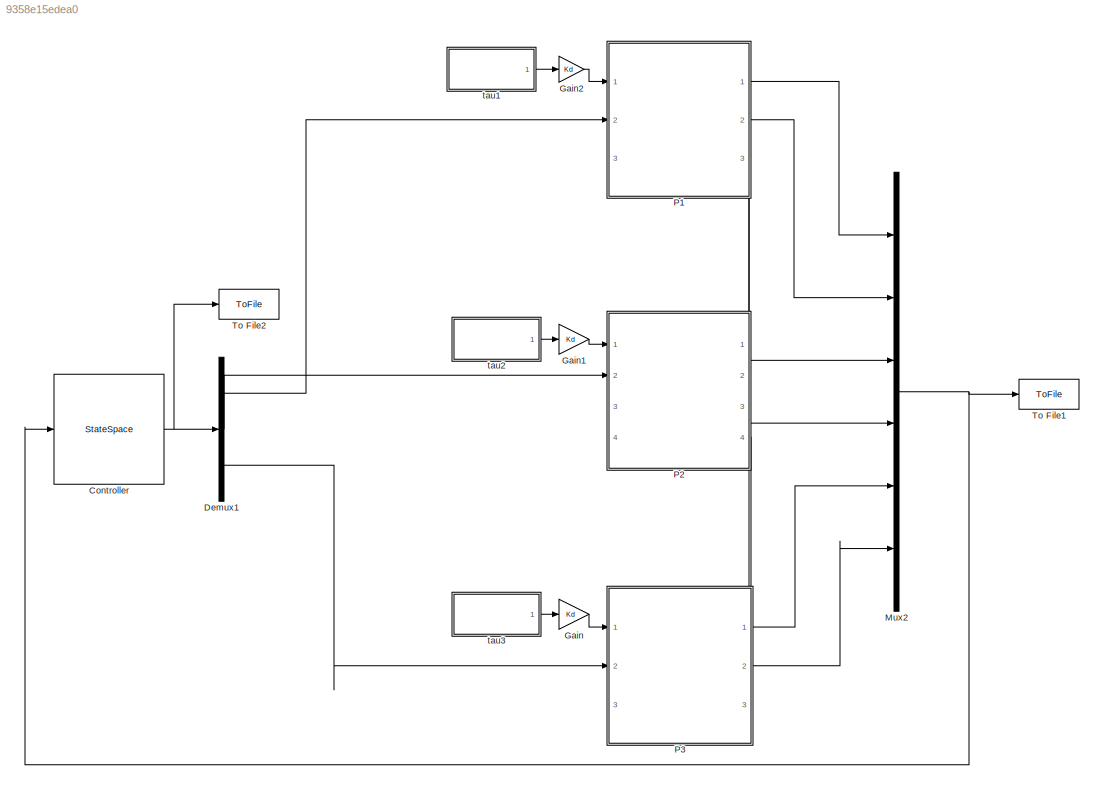
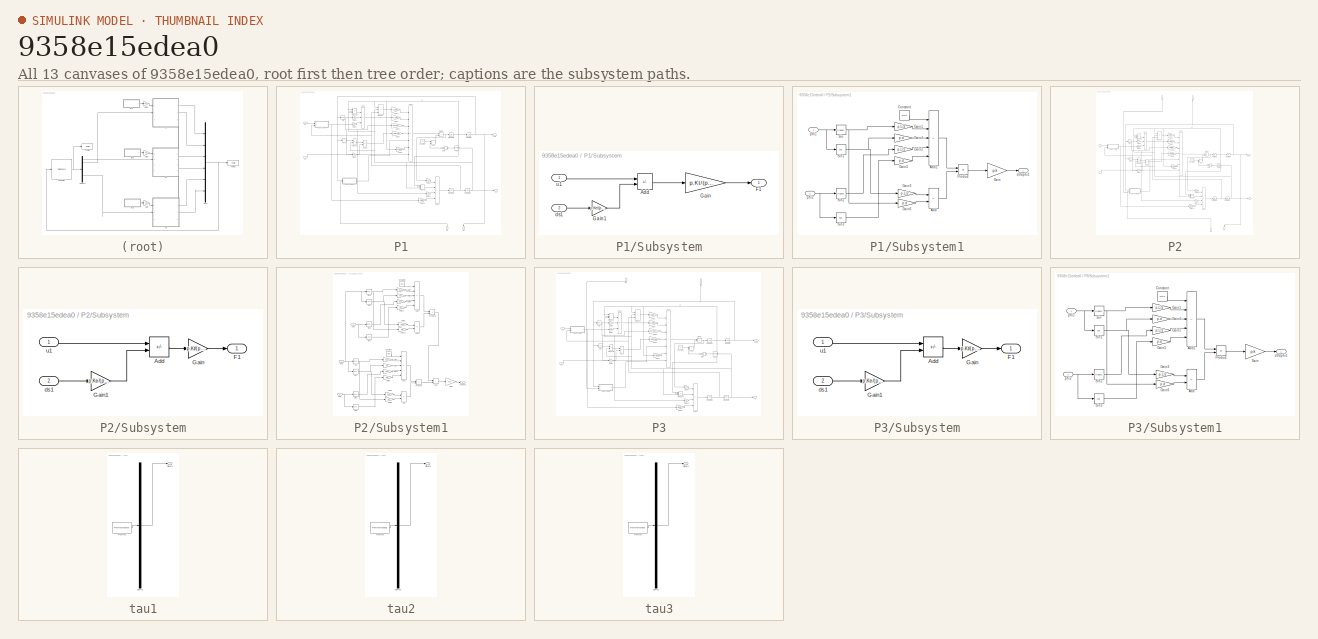
[diagram: thumbnail index - all 13 canvases of the model, root first then tree order]
MODEL slx_9358e15edea0
KIND model
CONFIG AbsTol = auto
CONFIG EnableMultiTasking = off
CONFIG FixedStep = auto
CONFIG MaxStep = auto
CONFIG MinStep = auto
CONFIG RelTol = 1e-3
CONFIG SampleTimeConstraint = Unconstrained
CONFIG Solver = ode45
CONFIG SolverName = ode45
CONFIG StartTime = 0.0
CONFIG StopTime = 10.0
BLOCK [StateSpace] Controller
  A = K.A
  B = K.B
  C = K.C
  D = K.D
  InitialCondition = 0
  Ports = [1, 1]
BLOCK [Demux] Demux1
  Outputs = 3
  Ports = [1, 3]
BLOCK [Gain] Gain
  Gain = Kd
BLOCK [Gain] Gain1
  Gain = Kd
BLOCK [Gain] Gain2
  Gain = Kd
BLOCK [Mux] Mux2
  DisplayOption = bar
  Inputs = 6
  Ports = [6, 1]
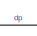
[diagram: P1 - part 1/3, top center region]
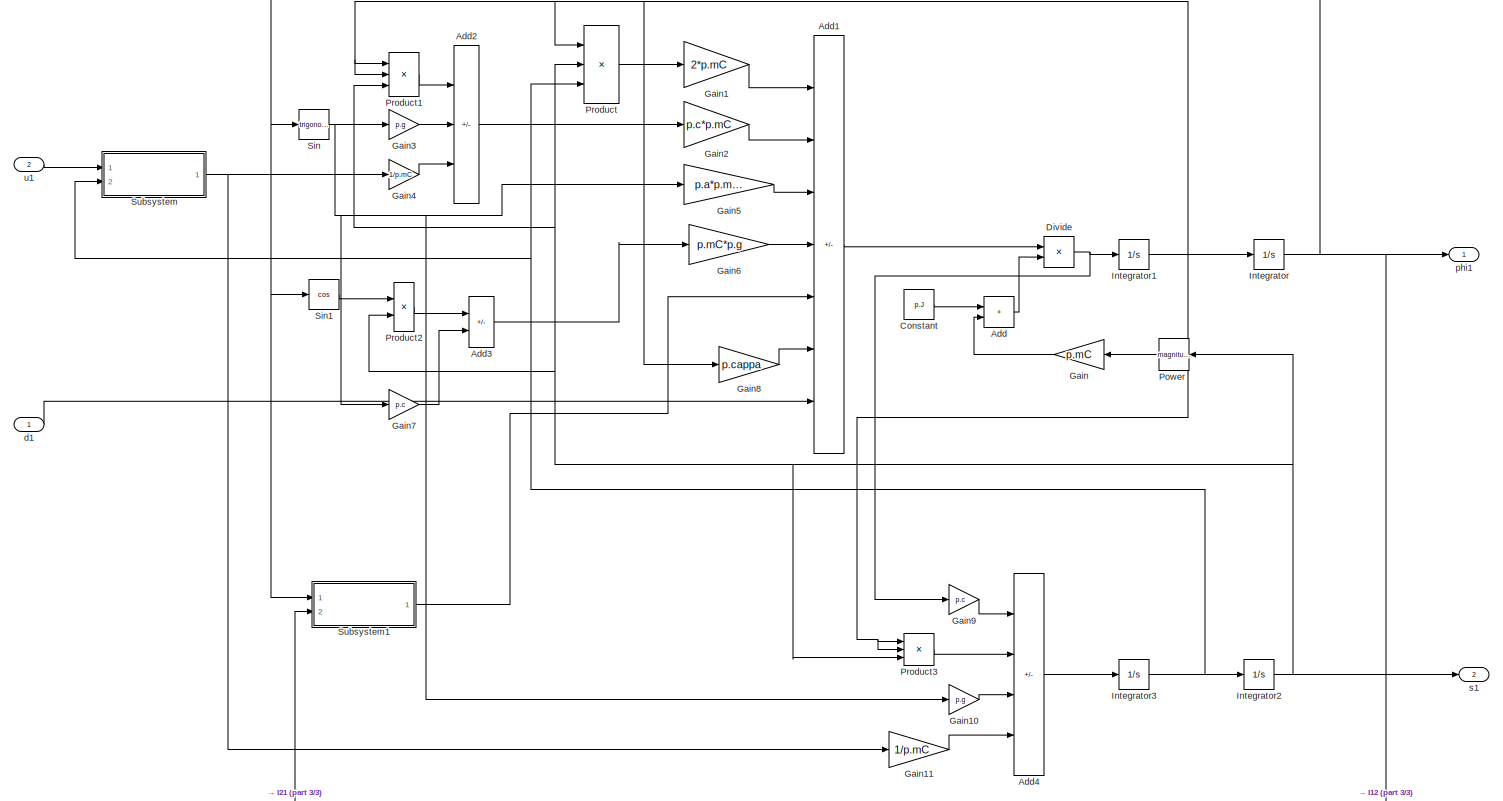
[diagram: P1 - part 2/3, most of the canvas]
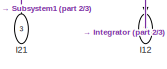
[diagram: P1 - part 3/3, bottom right region]
BLOCK [SubSystem] P1
  NameLocation = top
  PortSchema = {"entries":[{"content":{"sides":[{"content":{"connectorIds":["In1","In2"]},"type":"ConnectorPlacement.EquallySpacedRectSide","uuid":"8ecf2bd6-8dd7-4624-a6b6-31e540f77a47"},{"content":{"connectorIds":["Out1","Out2"],"side":"RIGHT"},"type":"ConnectorPlacement.EquallySpacedRectSide","uuid":"8430024e-b75d-4fb2-99a2-0065abf52074"},{"content":{"connectorIds":[],"side":"TOP"},"type":"ConnectorPlacement.E...<+411ch>
  Ports = [3, 3]
  RequestExecContextInheritance = off
BLOCK [Sum] P1/Add
  IconShape = rectangular
  Ports = [2, 1]
BLOCK [Sum] P1/Add1
  IconShape = rectangular
  Inputs = -++---+
  Ports = [7, 1]
BLOCK [Sum] P1/Add2
  IconShape = rectangular
  Inputs = +-+
  Ports = [3, 1]
BLOCK [Sum] P1/Add3
  IconShape = rectangular
  Inputs = +-
  Ports = [2, 1]
BLOCK [Sum] P1/Add4
  IconShape = rectangular
  Inputs = ++-+
  Ports = [4, 1]
BLOCK [Constant] P1/Constant
  Value = p.J
BLOCK [Product] P1/Divide
  Inputs = */
  Ports = [2, 1]
BLOCK [Gain] P1/Gain
  Gain = p.mC
BLOCK [Gain] P1/Gain1
  Gain = 2*p.mC
BLOCK [Gain] P1/Gain10
  Gain = p.g
BLOCK [Gain] P1/Gain11
  Gain = 1/p.mC
BLOCK [Gain] P1/Gain2
  Gain = p.c*p.mC
BLOCK [Gain] P1/Gain3
  Gain = p.g
BLOCK [Gain] P1/Gain4
  Gain = 1/p.mC
BLOCK [Gain] P1/Gain5
  Gain = p.a*p.mA*p.g
BLOCK [Gain] P1/Gain6
  Gain = p.mC*p.g
BLOCK [Gain] P1/Gain7
  Gain = p.c
BLOCK [Gain] P1/Gain8
  Gain = p.cappa
BLOCK [Gain] P1/Gain9
  Gain = p.c
BLOCK [Outport] P1/I12
  NameLocation = left
  Port = 3
BLOCK [Inport] P1/I21
  NameLocation = right
  Port = 3
BLOCK [Integrator] P1/Integrator
  Ports = [1, 1]
BLOCK [Integrator] P1/Integrator1
  Ports = [1, 1]
BLOCK [Integrator] P1/Integrator2
  Ports = [1, 1]
BLOCK [Integrator] P1/Integrator3
  Ports = [1, 1]
BLOCK [Math] P1/Power
  Operator = magnitude^2
  Ports = [1, 1]
BLOCK [Product] P1/Product
  Inputs = 3
  Ports = [3, 1]
BLOCK [Product] P1/Product1
  Inputs = 3
  Ports = [3, 1]
BLOCK [Product] P1/Product2
  Ports = [2, 1]
BLOCK [Product] P1/Product3
  Inputs = 3
  Ports = [3, 1]
BLOCK [Trigonometry] P1/Sin
  Ports = [1, 1]
BLOCK [Trigonometry] P1/Sin1
  Operator = cos
  Ports = [1, 1]
BLOCK [SubSystem] P1/Subsystem
  Ports = [2, 1]
  RequestExecContextInheritance = off
BLOCK [Sum] P1/Subsystem/Add
  IconShape = rectangular
  Inputs = +-
  Ports = [2, 1]
BLOCK [Outport] P1/Subsystem/F1
BLOCK [Gain] P1/Subsystem/Gain
  Gain = p.Kt/(p.Ra*p.p*p.r)
BLOCK [Gain] P1/Subsystem/Gain1
  Gain = p.Ke/(p.p*p.r)
BLOCK [Inport] P1/Subsystem/ds1
  Port = 2
BLOCK [Inport] P1/Subsystem/u1
BLOCK [SubSystem] P1/Subsystem1
  Ports = [2, 1]
  RequestExecContextInheritance = off
BLOCK [Sum] P1/Subsystem1/Add
  IconShape = rectangular
  Inputs = +-
  Ports = [2, 1]
BLOCK [Sum] P1/Subsystem1/Add1
  IconShape = rectangular
  Inputs = -++++
  Ports = [5, 1]
BLOCK [Constant] P1/Subsystem1/Constant
  Value = 2*p.d
BLOCK [Gain] P1/Subsystem1/Gain
  Gain = p.k
BLOCK [Gain] P1/Subsystem1/Gain1
  Gain = p.L/2
BLOCK [Gain] P1/Subsystem1/Gain2
  Gain = p.L/2
BLOCK [Gain] P1/Subsystem1/Gain3
  Gain = p.L/2
BLOCK [Gain] P1/Subsystem1/Gain4
  Gain = p.d
BLOCK [Gain] P1/Subsystem1/Gain5
  Gain = p.d
BLOCK [Gain] P1/Subsystem1/Gain6
  Gain = p.d
BLOCK [Product] P1/Subsystem1/Product
  Ports = [2, 1]
BLOCK [Trigonometry] P1/Subsystem1/Sin
  Ports = [1, 1]
BLOCK [Trigonometry] P1/Subsystem1/Sin1
  Operator = cos
  Ports = [1, 1]
BLOCK [Trigonometry] P1/Subsystem1/Sin2
  Ports = [1, 1]
BLOCK [Trigonometry] P1/Subsystem1/Sin3
  Operator = cos
  Ports = [1, 1]
BLOCK [Outport] P1/Subsystem1/dVdphi1
BLOCK [Inport] P1/Subsystem1/phi1
BLOCK [Inport] P1/Subsystem1/phi2
  Port = 2
BLOCK [Inport] P1/d1
BLOCK [Outport] P1/phi1
BLOCK [Outport] P1/s1
  Port = 2
BLOCK [Inport] P1/u1
  Port = 2
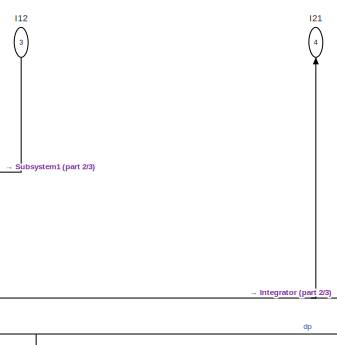
[diagram: P2 - part 1/3, top center region]
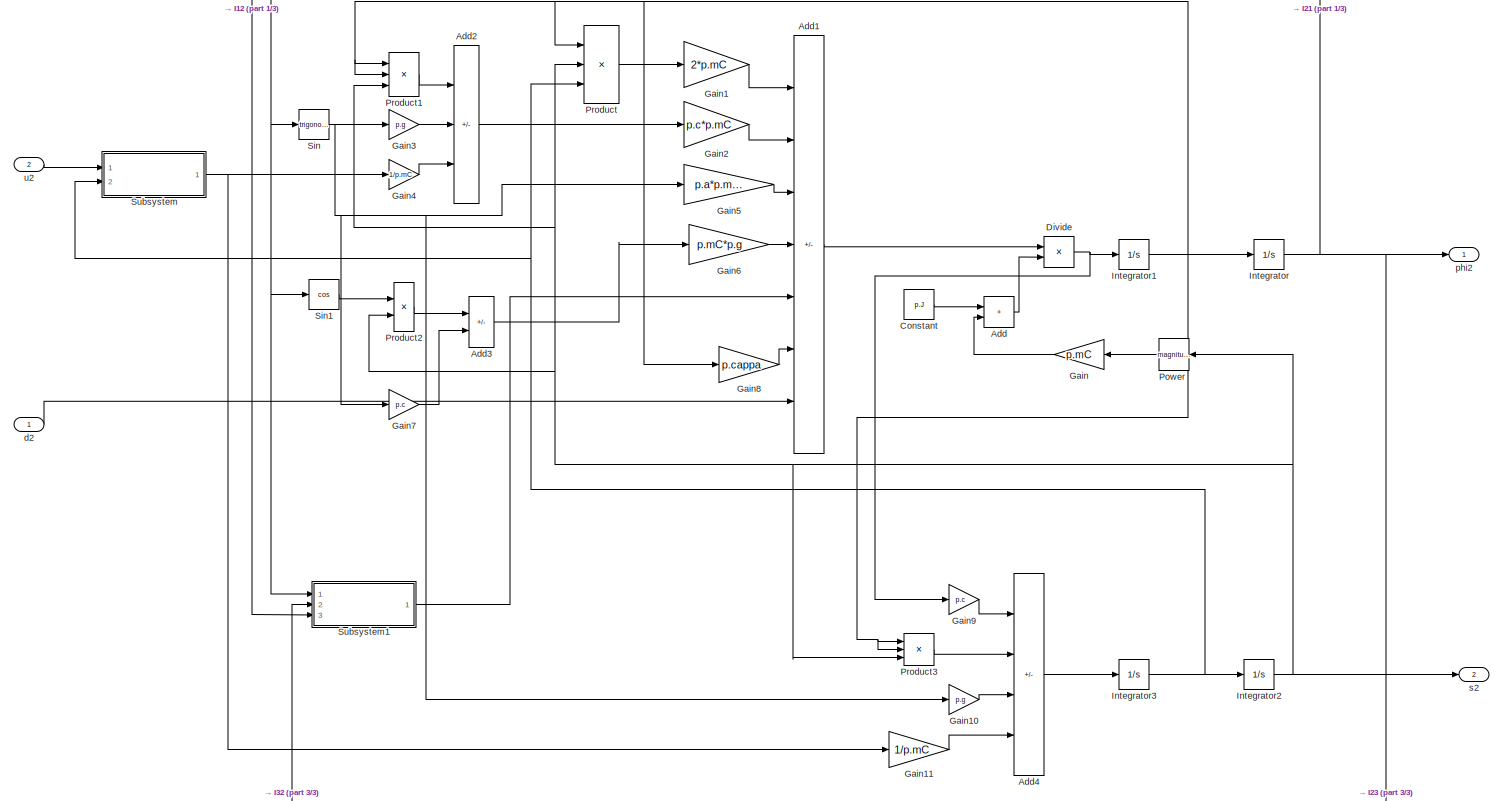
[diagram: P2 - part 2/3, full width, middle band]
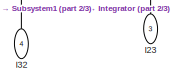
[diagram: P2 - part 3/3, bottom right region]
BLOCK [SubSystem] P2
  NameLocation = top
  PortSchema = {"entries":[{"content":{"sides":[{"content":{"connectorIds":["In1","In2"]},"type":"ConnectorPlacement.EquallySpacedRectSide","uuid":"4bcbf91d-3e1f-4b18-9cf2-1c48cd989a02"},{"content":{"connectorIds":["Out1","Out2"],"side":"RIGHT"},"type":"ConnectorPlacement.EquallySpacedRectSide","uuid":"817b564b-dbb4-4a38-a63d-192f41fddb5e"},{"content":{"connectorIds":["Out4","In3"],"side":"TOP"},"type":"Connecto...<+423ch>
  Ports = [4, 4]
  RequestExecContextInheritance = off
BLOCK [Sum] P2/Add
  IconShape = rectangular
  Ports = [2, 1]
BLOCK [Sum] P2/Add1
  IconShape = rectangular
  Inputs = -++---+
  Ports = [7, 1]
BLOCK [Sum] P2/Add2
  IconShape = rectangular
  Inputs = +-+
  Ports = [3, 1]
BLOCK [Sum] P2/Add3
  IconShape = rectangular
  Inputs = +-
  Ports = [2, 1]
BLOCK [Sum] P2/Add4
  IconShape = rectangular
  Inputs = ++-+
  Ports = [4, 1]
BLOCK [Constant] P2/Constant
  Value = p.J
BLOCK [Product] P2/Divide
  Inputs = */
  Ports = [2, 1]
BLOCK [Gain] P2/Gain
  Gain = p.mC
BLOCK [Gain] P2/Gain1
  Gain = 2*p.mC
BLOCK [Gain] P2/Gain10
  Gain = p.g
BLOCK [Gain] P2/Gain11
  Gain = 1/p.mC
BLOCK [Gain] P2/Gain2
  Gain = p.c*p.mC
BLOCK [Gain] P2/Gain3
  Gain = p.g
BLOCK [Gain] P2/Gain4
  Gain = 1/p.mC
BLOCK [Gain] P2/Gain5
  Gain = p.a*p.mA*p.g
BLOCK [Gain] P2/Gain6
  Gain = p.mC*p.g
BLOCK [Gain] P2/Gain7
  Gain = p.c
BLOCK [Gain] P2/Gain8
  Gain = p.cappa
BLOCK [Gain] P2/Gain9
  Gain = p.c
BLOCK [Inport] P2/I12
  NameLocation = left
  Port = 3
BLOCK [Outport] P2/I21
  NameLocation = right
  Port = 4
BLOCK [Outport] P2/I23
  NameLocation = left
  Port = 3
BLOCK [Inport] P2/I32
  NameLocation = right
  Port = 4
BLOCK [Integrator] P2/Integrator
  Ports = [1, 1]
BLOCK [Integrator] P2/Integrator1
  Ports = [1, 1]
BLOCK [Integrator] P2/Integrator2
  Ports = [1, 1]
BLOCK [Integrator] P2/Integrator3
  Ports = [1, 1]
BLOCK [Math] P2/Power
  Operator = magnitude^2
  Ports = [1, 1]
BLOCK [Product] P2/Product
  Inputs = 3
  Ports = [3, 1]
BLOCK [Product] P2/Product1
  Inputs = 3
  Ports = [3, 1]
BLOCK [Product] P2/Product2
  Ports = [2, 1]
BLOCK [Product] P2/Product3
  Inputs = 3
  Ports = [3, 1]
BLOCK [Trigonometry] P2/Sin
  Ports = [1, 1]
BLOCK [Trigonometry] P2/Sin1
  Operator = cos
  Ports = [1, 1]
BLOCK [SubSystem] P2/Subsystem
  Ports = [2, 1]
  RequestExecContextInheritance = off
BLOCK [Sum] P2/Subsystem/Add
  IconShape = rectangular
  Inputs = +-
  Ports = [2, 1]
BLOCK [Outport] P2/Subsystem/F1
BLOCK [Gain] P2/Subsystem/Gain
  Gain = p.Kt/(p.Ra*p.p*p.r)
BLOCK [Gain] P2/Subsystem/Gain1
  Gain = p.Ke/(p.p*p.r)
BLOCK [Inport] P2/Subsystem/ds1
  Port = 2
BLOCK [Inport] P2/Subsystem/u1
BLOCK [SubSystem] P2/Subsystem1
  Ports = [3, 1]
  RequestExecContextInheritance = off
BLOCK [Sum] P2/Subsystem1/Add
  IconShape = rectangular
  Inputs = +-
  Ports = [2, 1]
BLOCK [Sum] P2/Subsystem1/Add1
  IconShape = rectangular
  Inputs = -++++
  Ports = [5, 1]
BLOCK [Sum] P2/Subsystem1/Add2
  IconShape = rectangular
  Ports = [2, 1]
BLOCK [Sum] P2/Subsystem1/Add3
  IconShape = rectangular
  Inputs = +-
  Ports = [2, 1]
BLOCK [Sum] P2/Subsystem1/Add4
  IconShape = rectangular
  Inputs = -++++
  Ports = [5, 1]
BLOCK [Constant] P2/Subsystem1/Constant
  Value = 2*p.d
BLOCK [Constant] P2/Subsystem1/Constant1
  Value = 2*p.d
BLOCK [Gain] P2/Subsystem1/Gain
  Gain = p.k
BLOCK [Gain] P2/Subsystem1/Gain1
  Gain = p.L/2
BLOCK [Gain] P2/Subsystem1/Gain10
  Gain = p.d
BLOCK [Gain] P2/Subsystem1/Gain11
  Gain = p.d
BLOCK [Gain] P2/Subsystem1/Gain12
  Gain = p.d
BLOCK [Gain] P2/Subsystem1/Gain2
  Gain = p.L/2
BLOCK [Gain] P2/Subsystem1/Gain3
  Gain = p.L/2
BLOCK [Gain] P2/Subsystem1/Gain4
  Gain = p.d
BLOCK [Gain] P2/Subsystem1/Gain5
  Gain = p.d
BLOCK [Gain] P2/Subsystem1/Gain6
  Gain = p.d
BLOCK [Gain] P2/Subsystem1/Gain7
  Gain = p.L/2
BLOCK [Gain] P2/Subsystem1/Gain8
  Gain = p.L/2
BLOCK [Gain] P2/Subsystem1/Gain9
  Gain = p.L/2
BLOCK [Product] P2/Subsystem1/Product
  Ports = [2, 1]
BLOCK [Product] P2/Subsystem1/Product1
  Ports = [2, 1]
BLOCK [Trigonometry] P2/Subsystem1/Sin
  Ports = [1, 1]
BLOCK [Trigonometry] P2/Subsystem1/Sin1
  Operator = cos
  Ports = [1, 1]
BLOCK [Trigonometry] P2/Subsystem1/Sin2
  Ports = [1, 1]
BLOCK [Trigonometry] P2/Subsystem1/Sin3
  Operator = cos
  Ports = [1, 1]
BLOCK [Trigonometry] P2/Subsystem1/Sin4
  Ports = [1, 1]
BLOCK [Trigonometry] P2/Subsystem1/Sin5
  Operator = cos
  Ports = [1, 1]
BLOCK [Trigonometry] P2/Subsystem1/Sin6
  Ports = [1, 1]
BLOCK [Trigonometry] P2/Subsystem1/Sin7
  Operator = cos
  Ports = [1, 1]
BLOCK [Outport] P2/Subsystem1/dVdphi1
BLOCK [Inport] P2/Subsystem1/phi0
  Port = 3
BLOCK [Inport] P2/Subsystem1/phi1
BLOCK [Inport] P2/Subsystem1/phi2
  Port = 2
BLOCK [Inport] P2/d2
BLOCK [Outport] P2/phi2
BLOCK [Outport] P2/s2
  Port = 2
BLOCK [Inport] P2/u2
  Port = 2
BLOCK [SubSystem] P3
  NameLocation = top
  PortSchema = {"entries":[{"content":{"sides":[{"content":{"connectorIds":["In1","In2"]},"type":"ConnectorPlacement.EquallySpacedRectSide","uuid":"4bcbf91d-3e1f-4b18-9cf2-1c48cd989a02"},{"content":{"connectorIds":["Out1","Out2"],"side":"RIGHT"},"type":"ConnectorPlacement.EquallySpacedRectSide","uuid":"817b564b-dbb4-4a38-a63d-192f41fddb5e"},{"content":{"connectorIds":["Out3","In3"],"side":"TOP"},"type":"Connecto...<+411ch>
  Ports = [3, 3]
  RequestExecContextInheritance = off
BLOCK [Sum] P3/Add
  IconShape = rectangular
  Ports = [2, 1]
BLOCK [Sum] P3/Add1
  IconShape = rectangular
  Inputs = -++---+
  Ports = [7, 1]
BLOCK [Sum] P3/Add2
  IconShape = rectangular
  Inputs = +-+
  Ports = [3, 1]
BLOCK [Sum] P3/Add3
  IconShape = rectangular
  Inputs = +-
  Ports = [2, 1]
BLOCK [Sum] P3/Add4
  IconShape = rectangular
  Inputs = ++-+
  Ports = [4, 1]
BLOCK [Constant] P3/Constant
  Value = p.J
BLOCK [Product] P3/Divide
  Inputs = */
  Ports = [2, 1]
BLOCK [Gain] P3/Gain
  Gain = p.mC
BLOCK [Gain] P3/Gain1
  Gain = 2*p.mC
BLOCK [Gain] P3/Gain10
  Gain = p.g
BLOCK [Gain] P3/Gain11
  Gain = 1/p.mC
BLOCK [Gain] P3/Gain2
  Gain = p.c*p.mC
BLOCK [Gain] P3/Gain3
  Gain = p.g
BLOCK [Gain] P3/Gain4
  Gain = 1/p.mC
BLOCK [Gain] P3/Gain5
  Gain = p.a*p.mA*p.g
BLOCK [Gain] P3/Gain6
  Gain = p.mC*p.g
BLOCK [Gain] P3/Gain7
  Gain = p.c
BLOCK [Gain] P3/Gain8
  Gain = p.cappa
BLOCK [Gain] P3/Gain9
  Gain = p.c
BLOCK [Inport] P3/I23
  NameLocation = left
  Port = 3
BLOCK [Outport] P3/I32
  NameLocation = right
  Port = 3
BLOCK [Integrator] P3/Integrator
  Ports = [1, 1]
BLOCK [Integrator] P3/Integrator1
  Ports = [1, 1]
BLOCK [Integrator] P3/Integrator2
  Ports = [1, 1]
BLOCK [Integrator] P3/Integrator3
  Ports = [1, 1]
BLOCK [Math] P3/Power
  Operator = magnitude^2
  Ports = [1, 1]
BLOCK [Product] P3/Product
  Inputs = 3
  Ports = [3, 1]
BLOCK [Product] P3/Product1
  Inputs = 3
  Ports = [3, 1]
BLOCK [Product] P3/Product2
  Ports = [2, 1]
BLOCK [Product] P3/Product3
  Inputs = 3
  Ports = [3, 1]
BLOCK [Trigonometry] P3/Sin
  Ports = [1, 1]
BLOCK [Trigonometry] P3/Sin1
  Operator = cos
  Ports = [1, 1]
BLOCK [SubSystem] P3/Subsystem
  Ports = [2, 1]
  RequestExecContextInheritance = off
BLOCK [Sum] P3/Subsystem/Add
  IconShape = rectangular
  Inputs = +-
  Ports = [2, 1]
BLOCK [Outport] P3/Subsystem/F1
BLOCK [Gain] P3/Subsystem/Gain
  Gain = p.Kt/(p.Ra*p.p*p.r)
BLOCK [Gain] P3/Subsystem/Gain1
  Gain = p.Ke/(p.p*p.r)
BLOCK [Inport] P3/Subsystem/ds1
  Port = 2
BLOCK [Inport] P3/Subsystem/u1
BLOCK [SubSystem] P3/Subsystem1
  Ports = [2, 1]
  RequestExecContextInheritance = off
BLOCK [Sum] P3/Subsystem1/Add
  IconShape = rectangular
  Inputs = +-
  Ports = [2, 1]
BLOCK [Sum] P3/Subsystem1/Add1
  IconShape = rectangular
  Inputs = -++++
  Ports = [5, 1]
BLOCK [Constant] P3/Subsystem1/Constant
  Value = 2*p.d
BLOCK [Gain] P3/Subsystem1/Gain
  Gain = p.k
BLOCK [Gain] P3/Subsystem1/Gain1
  Gain = p.L/2
BLOCK [Gain] P3/Subsystem1/Gain2
  Gain = p.L/2
BLOCK [Gain] P3/Subsystem1/Gain3
  Gain = p.L/2
BLOCK [Gain] P3/Subsystem1/Gain4
  Gain = p.d
BLOCK [Gain] P3/Subsystem1/Gain5
  Gain = p.d
BLOCK [Gain] P3/Subsystem1/Gain6
  Gain = p.d
BLOCK [Product] P3/Subsystem1/Product
  Ports = [2, 1]
BLOCK [Trigonometry] P3/Subsystem1/Sin
  Ports = [1, 1]
BLOCK [Trigonometry] P3/Subsystem1/Sin1
  Operator = cos
  Ports = [1, 1]
BLOCK [Trigonometry] P3/Subsystem1/Sin2
  Ports = [1, 1]
BLOCK [Trigonometry] P3/Subsystem1/Sin3
  Operator = cos
  Ports = [1, 1]
BLOCK [Outport] P3/Subsystem1/dVdphi1
BLOCK [Inport] P3/Subsystem1/phi1
BLOCK [Inport] P3/Subsystem1/phi2
  Port = 2
BLOCK [Inport] P3/d3
BLOCK [Outport] P3/phi3
BLOCK [Outport] P3/s3
  Port = 2
BLOCK [Inport] P3/u3
  Port = 2
BLOCK [ToFile] To File1
  Filename = y_sim.mat
  MatrixName = y_sim
  Ports = [1]
  SampleTime = 0.01
BLOCK [ToFile] To File2
  Filename = u_sim.mat
  MatrixName = u_sim
  Ports = [1]
  SampleTime = 0.01
BLOCK [SubSystem] tau1
  ClipboardFcn = sigbuilder_block('clipboard');
  CloseFcn = sigbuilder_block('close');
  ContinueFcn = sigbuilder_block('continue');
  CopyFcn = sigbuilder_block('copy');
  DeleteFcn = sigbuilder_block('delete');
  LoadFcn = sigbuilder_block('load');
  MaskHideContents = on
  ModelCloseFcn = sigbuilder_block('modelClose');
  NameChangeFcn = sigbuilder_block('namechange');
  OpenFcn = sigbuilder_block('open',[437.6 199.2 550.4 400 ]);
  PauseFcn = sigbuilder_block('pause');
  Ports = [0, 1]
  PreSaveFcn = sigbuilder_block('preSave');
  RequestExecContextInheritance = off
  StartFcn = sigbuilder_block('start');
  StopFcn = sigbuilder_block('stop');
  Tag = STV Subsys
BLOCK [Demux] tau1/Demux
  DisplayOption = none
  Outputs = 1
  Ports = [1, 1]
  Tag = STV Demux
BLOCK [FromWorkspace] tau1/FromWs
  Tag = STV FromWs
  VariableName = tuvar
BLOCK [Outport] tau1/Signal 1
  Tag = STV Outport
  VectorParamsAs1DForOutWhenUnconnected = off
BLOCK [SubSystem] tau2
  ClipboardFcn = sigbuilder_block('clipboard');
  CloseFcn = sigbuilder_block('close');
  ContinueFcn = sigbuilder_block('continue');
  CopyFcn = sigbuilder_block('copy');
  DeleteFcn = sigbuilder_block('delete');
  LoadFcn = sigbuilder_block('load');
  MaskHideContents = on
  ModelCloseFcn = sigbuilder_block('modelClose');
  NameChangeFcn = sigbuilder_block('namechange');
  OpenFcn = sigbuilder_block('open',[437.6 199.2 550.4 400 ]);
  PauseFcn = sigbuilder_block('pause');
  Ports = [0, 1]
  PreSaveFcn = sigbuilder_block('preSave');
  RequestExecContextInheritance = off
  StartFcn = sigbuilder_block('start');
  StopFcn = sigbuilder_block('stop');
  Tag = STV Subsys
BLOCK [Demux] tau2/Demux
  DisplayOption = none
  Outputs = 1
  Ports = [1, 1]
  Tag = STV Demux
BLOCK [FromWorkspace] tau2/FromWs
  Tag = STV FromWs
  VariableName = tuvar
BLOCK [Outport] tau2/Signal 1
  Tag = STV Outport
  VectorParamsAs1DForOutWhenUnconnected = off
BLOCK [SubSystem] tau3
  ClipboardFcn = sigbuilder_block('clipboard');
  CloseFcn = sigbuilder_block('close');
  ContinueFcn = sigbuilder_block('continue');
  CopyFcn = sigbuilder_block('copy');
  DeleteFcn = sigbuilder_block('delete');
  LoadFcn = sigbuilder_block('load');
  MaskHideContents = on
  ModelCloseFcn = sigbuilder_block('modelClose');
  NameChangeFcn = sigbuilder_block('namechange');
  OpenFcn = sigbuilder_block('open',[437.6 199.2 550.4 400 ]);
  PauseFcn = sigbuilder_block('pause');
  Ports = [0, 1]
  PreSaveFcn = sigbuilder_block('preSave');
  RequestExecContextInheritance = off
  StartFcn = sigbuilder_block('start');
  StopFcn = sigbuilder_block('stop');
  Tag = STV Subsys
BLOCK [Demux] tau3/Demux
  DisplayOption = none
  Outputs = 1
  Ports = [1, 1]
  Tag = STV Demux
BLOCK [FromWorkspace] tau3/FromWs
  Tag = STV FromWs
  VariableName = tuvar
BLOCK [Outport] tau3/Signal 1
  Tag = STV Outport
  VectorParamsAs1DForOutWhenUnconnected = off
NET Controller:1 -> Demux1:1, To File2:1
LINE Demux1:1 -> P1:2
LINE Demux1:2 -> P2:2
LINE Demux1:3 -> P3:2
LINE Gain1:1 -> P2:1
LINE Gain2:1 -> P1:1
LINE Gain:1 -> P3:1
NET Mux2:1 -> Controller:1, To File1:1
LINE P1/Add1:1 -> P1/Divide:1
LINE P1/Add2:1 -> P1/Gain2:1
LINE P1/Add3:1 -> P1/Gain6:1
LINE P1/Add4:1 -> P1/Integrator3:1
LINE P1/Add:1 -> P1/Divide:2
LINE P1/Constant:1 -> P1/Add:1
NET P1/Divide:1 -> P1/Gain9:1, P1/Integrator1:1
LINE P1/Gain10:1 -> P1/Add4:3
LINE P1/Gain11:1 -> P1/Add4:4
LINE P1/Gain1:1 -> P1/Add1:1
LINE P1/Gain2:1 -> P1/Add1:2
LINE P1/Gain3:1 -> P1/Add2:2
LINE P1/Gain4:1 -> P1/Add2:3
LINE P1/Gain5:1 -> P1/Add1:3
LINE P1/Gain6:1 -> P1/Add1:4
LINE P1/Gain7:1 -> P1/Add3:2
LINE P1/Gain8:1 -> P1/Add1:6
LINE P1/Gain9:1 -> P1/Add4:1
LINE P1/Gain:1 -> P1/Add:2
LINE P1/I21:1 -> P1/Subsystem1:2
NET P1/Integrator1:1 -> P1/Gain8:1, P1/Integrator:1, P1/Product1:1, P1/Product1:2, P1/Product3:1, P1/Product3:2, P1/Product:1
NET P1/Integrator2:1 -> P1/Power:1, P1/Product1:3, P1/Product2:2, P1/Product3:3, P1/Product:2, P1/s1:1
NET P1/Integrator3:1 -> P1/Integrator2:1, P1/Product:3, P1/Subsystem:2
NET P1/Integrator:1 -> P1/I12:1, P1/Sin1:1, P1/Sin:1, P1/Subsystem1:1, P1/phi1:1
LINE P1/Power:1 -> P1/Gain:1
LINE P1/Product1:1 -> P1/Add2:1
LINE P1/Product2:1 -> P1/Add3:1
LINE P1/Product3:1 -> P1/Add4:2
LINE P1/Product:1 -> P1/Gain1:1
LINE P1/Sin1:1 -> P1/Product2:1
NET P1/Sin:1 -> P1/Gain10:1, P1/Gain3:1, P1/Gain5:1, P1/Gain7:1
LINE P1/Subsystem/Add:1 -> P1/Subsystem/Gain:1
LINE P1/Subsystem/Gain1:1 -> P1/Subsystem/Add:2
LINE P1/Subsystem/Gain:1 -> P1/Subsystem/F1:1
LINE P1/Subsystem/ds1:1 -> P1/Subsystem/Gain1:1
LINE P1/Subsystem/u1:1 -> P1/Subsystem/Add:1
LINE P1/Subsystem1/Add1:1 -> P1/Subsystem1/Product:1
LINE P1/Subsystem1/Add:1 -> P1/Subsystem1/Product:2
LINE P1/Subsystem1/Constant:1 -> P1/Subsystem1/Add1:1
LINE P1/Subsystem1/Gain1:1 -> P1/Subsystem1/Add1:2
LINE P1/Subsystem1/Gain2:1 -> P1/Subsystem1/Add1:4
LINE P1/Subsystem1/Gain3:1 -> P1/Subsystem1/Add:1
LINE P1/Subsystem1/Gain4:1 -> P1/Subsystem1/Add1:3
LINE P1/Subsystem1/Gain5:1 -> P1/Subsystem1/Add1:5
LINE P1/Subsystem1/Gain6:1 -> P1/Subsystem1/Add:2
LINE P1/Subsystem1/Gain:1 -> P1/Subsystem1/dVdphi1:1
LINE P1/Subsystem1/Product:1 -> P1/Subsystem1/Gain:1
NET P1/Subsystem1/Sin1:1 -> P1/Subsystem1/Gain3:1, P1/Subsystem1/Gain4:1
LINE P1/Subsystem1/Sin2:1 -> P1/Subsystem1/Gain2:1
LINE P1/Subsystem1/Sin3:1 -> P1/Subsystem1/Gain5:1
NET P1/Subsystem1/Sin:1 -> P1/Subsystem1/Gain1:1, P1/Subsystem1/Gain6:1
NET P1/Subsystem1/phi1:1 -> P1/Subsystem1/Sin1:1, P1/Subsystem1/Sin:1
NET P1/Subsystem1/phi2:1 -> P1/Subsystem1/Sin2:1, P1/Subsystem1/Sin3:1
LINE P1/Subsystem1:1 -> P1/Add1:5
NET P1/Subsystem:1 -> P1/Gain11:1, P1/Gain4:1
LINE P1/d1:1 -> P1/Add1:7
LINE P1/u1:1 -> P1/Subsystem:1
LINE P1:1 -> Mux2:1
LINE P1:2 -> Mux2:2
LINE P1:3 -> P2:3
LINE P2/Add1:1 -> P2/Divide:1
LINE P2/Add2:1 -> P2/Gain2:1
LINE P2/Add3:1 -> P2/Gain6:1
LINE P2/Add4:1 -> P2/Integrator3:1
LINE P2/Add:1 -> P2/Divide:2
LINE P2/Constant:1 -> P2/Add:1
NET P2/Divide:1 -> P2/Gain9:1, P2/Integrator1:1
LINE P2/Gain10:1 -> P2/Add4:3
LINE P2/Gain11:1 -> P2/Add4:4
LINE P2/Gain1:1 -> P2/Add1:1
LINE P2/Gain2:1 -> P2/Add1:2
LINE P2/Gain3:1 -> P2/Add2:2
LINE P2/Gain4:1 -> P2/Add2:3
LINE P2/Gain5:1 -> P2/Add1:3
LINE P2/Gain6:1 -> P2/Add1:4
LINE P2/Gain7:1 -> P2/Add3:2
LINE P2/Gain8:1 -> P2/Add1:6
LINE P2/Gain9:1 -> P2/Add4:1
LINE P2/Gain:1 -> P2/Add:2
LINE P2/I12:1 -> P2/Subsystem1:3
LINE P2/I32:1 -> P2/Subsystem1:2
NET P2/Integrator1:1 -> P2/Gain8:1, P2/Integrator:1, P2/Product1:1, P2/Product1:2, P2/Product3:1, P2/Product3:2, P2/Product:1
NET P2/Integrator2:1 -> P2/Power:1, P2/Product1:3, P2/Product2:2, P2/Product3:3, P2/Product:2, P2/s2:1
NET P2/Integrator3:1 -> P2/Integrator2:1, P2/Product:3, P2/Subsystem:2
NET P2/Integrator:1 -> P2/I21:1, P2/I23:1, P2/Sin1:1, P2/Sin:1, P2/Subsystem1:1, P2/phi2:1
LINE P2/Power:1 -> P2/Gain:1
LINE P2/Product1:1 -> P2/Add2:1
LINE P2/Product2:1 -> P2/Add3:1
LINE P2/Product3:1 -> P2/Add4:2
LINE P2/Product:1 -> P2/Gain1:1
LINE P2/Sin1:1 -> P2/Product2:1
NET P2/Sin:1 -> P2/Gain10:1, P2/Gain3:1, P2/Gain5:1, P2/Gain7:1
LINE P2/Subsystem/Add:1 -> P2/Subsystem/Gain:1
LINE P2/Subsystem/Gain1:1 -> P2/Subsystem/Add:2
LINE P2/Subsystem/Gain:1 -> P2/Subsystem/F1:1
LINE P2/Subsystem/ds1:1 -> P2/Subsystem/Gain1:1
LINE P2/Subsystem/u1:1 -> P2/Subsystem/Add:1
LINE P2/Subsystem1/Add1:1 -> P2/Subsystem1/Product:1
LINE P2/Subsystem1/Add2:1 -> P2/Subsystem1/Gain:1
LINE P2/Subsystem1/Add3:1 -> P2/Subsystem1/Product1:2
LINE P2/Subsystem1/Add4:1 -> P2/Subsystem1/Product1:1
LINE P2/Subsystem1/Add:1 -> P2/Subsystem1/Product:2
LINE P2/Subsystem1/Constant1:1 -> P2/Subsystem1/Add4:1
LINE P2/Subsystem1/Constant:1 -> P2/Subsystem1/Add1:1
LINE P2/Subsystem1/Gain10:1 -> P2/Subsystem1/Add4:3
LINE P2/Subsystem1/Gain11:1 -> P2/Subsystem1/Add4:5
LINE P2/Subsystem1/Gain12:1 -> P2/Subsystem1/Add3:2
LINE P2/Subsystem1/Gain1:1 -> P2/Subsystem1/Add1:2
LINE P2/Subsystem1/Gain2:1 -> P2/Subsystem1/Add1:4
LINE P2/Subsystem1/Gain3:1 -> P2/Subsystem1/Add:1
LINE P2/Subsystem1/Gain4:1 -> P2/Subsystem1/Add1:3
LINE P2/Subsystem1/Gain5:1 -> P2/Subsystem1/Add1:5
LINE P2/Subsystem1/Gain6:1 -> P2/Subsystem1/Add:2
LINE P2/Subsystem1/Gain7:1 -> P2/Subsystem1/Add4:2
LINE P2/Subsystem1/Gain8:1 -> P2/Subsystem1/Add4:4
LINE P2/Subsystem1/Gain9:1 -> P2/Subsystem1/Add3:1
LINE P2/Subsystem1/Gain:1 -> P2/Subsystem1/dVdphi1:1
LINE P2/Subsystem1/Product1:1 -> P2/Subsystem1/Add2:1
LINE P2/Subsystem1/Product:1 -> P2/Subsystem1/Add2:2
NET P2/Subsystem1/Sin1:1 -> P2/Subsystem1/Gain3:1, P2/Subsystem1/Gain4:1
LINE P2/Subsystem1/Sin2:1 -> P2/Subsystem1/Gain2:1
LINE P2/Subsystem1/Sin3:1 -> P2/Subsystem1/Gain5:1
NET P2/Subsystem1/Sin4:1 -> P2/Subsystem1/Gain12:1, P2/Subsystem1/Gain7:1
NET P2/Subsystem1/Sin5:1 -> P2/Subsystem1/Gain10:1, P2/Subsystem1/Gain9:1
LINE P2/Subsystem1/Sin6:1 -> P2/Subsystem1/Gain8:1
LINE P2/Subsystem1/Sin7:1 -> P2/Subsystem1/Gain11:1
NET P2/Subsystem1/Sin:1 -> P2/Subsystem1/Gain1:1, P2/Subsystem1/Gain6:1
NET P2/Subsystem1/phi0:1 -> P2/Subsystem1/Sin6:1, P2/Subsystem1/Sin7:1
NET P2/Subsystem1/phi1:1 -> P2/Subsystem1/Sin1:1, P2/Subsystem1/Sin4:1, P2/Subsystem1/Sin5:1, P2/Subsystem1/Sin:1
NET P2/Subsystem1/phi2:1 -> P2/Subsystem1/Sin2:1, P2/Subsystem1/Sin3:1
LINE P2/Subsystem1:1 -> P2/Add1:5
NET P2/Subsystem:1 -> P2/Gain11:1, P2/Gain4:1
LINE P2/d2:1 -> P2/Add1:7
LINE P2/u2:1 -> P2/Subsystem:1
LINE P2:1 -> Mux2:3
LINE P2:2 -> Mux2:4
LINE P2:3 -> P3:3
LINE P2:4 -> P1:3
LINE P3/Add1:1 -> P3/Divide:1
LINE P3/Add2:1 -> P3/Gain2:1
LINE P3/Add3:1 -> P3/Gain6:1
LINE P3/Add4:1 -> P3/Integrator3:1
LINE P3/Add:1 -> P3/Divide:2
LINE P3/Constant:1 -> P3/Add:1
NET P3/Divide:1 -> P3/Gain9:1, P3/Integrator1:1
LINE P3/Gain10:1 -> P3/Add4:3
LINE P3/Gain11:1 -> P3/Add4:4
LINE P3/Gain1:1 -> P3/Add1:1
LINE P3/Gain2:1 -> P3/Add1:2
LINE P3/Gain3:1 -> P3/Add2:2
LINE P3/Gain4:1 -> P3/Add2:3
LINE P3/Gain5:1 -> P3/Add1:3
LINE P3/Gain6:1 -> P3/Add1:4
LINE P3/Gain7:1 -> P3/Add3:2
LINE P3/Gain8:1 -> P3/Add1:6
LINE P3/Gain9:1 -> P3/Add4:1
LINE P3/Gain:1 -> P3/Add:2
LINE P3/I23:1 -> P3/Subsystem1:2
NET P3/Integrator1:1 -> P3/Gain8:1, P3/Integrator:1, P3/Product1:1, P3/Product1:2, P3/Product3:1, P3/Product3:2, P3/Product:1
NET P3/Integrator2:1 -> P3/Power:1, P3/Product1:3, P3/Product2:2, P3/Product3:3, P3/Product:2, P3/s3:1
NET P3/Integrator3:1 -> P3/Integrator2:1, P3/Product:3, P3/Subsystem:2
NET P3/Integrator:1 -> P3/I32:1, P3/Sin1:1, P3/Sin:1, P3/Subsystem1:1, P3/phi3:1
LINE P3/Power:1 -> P3/Gain:1
LINE P3/Product1:1 -> P3/Add2:1
LINE P3/Product2:1 -> P3/Add3:1
LINE P3/Product3:1 -> P3/Add4:2
LINE P3/Product:1 -> P3/Gain1:1
LINE P3/Sin1:1 -> P3/Product2:1
NET P3/Sin:1 -> P3/Gain10:1, P3/Gain3:1, P3/Gain5:1, P3/Gain7:1
LINE P3/Subsystem/Add:1 -> P3/Subsystem/Gain:1
LINE P3/Subsystem/Gain1:1 -> P3/Subsystem/Add:2
LINE P3/Subsystem/Gain:1 -> P3/Subsystem/F1:1
LINE P3/Subsystem/ds1:1 -> P3/Subsystem/Gain1:1
LINE P3/Subsystem/u1:1 -> P3/Subsystem/Add:1
LINE P3/Subsystem1/Add1:1 -> P3/Subsystem1/Product:1
LINE P3/Subsystem1/Add:1 -> P3/Subsystem1/Product:2
LINE P3/Subsystem1/Constant:1 -> P3/Subsystem1/Add1:1
LINE P3/Subsystem1/Gain1:1 -> P3/Subsystem1/Add1:2
LINE P3/Subsystem1/Gain2:1 -> P3/Subsystem1/Add1:4
LINE P3/Subsystem1/Gain3:1 -> P3/Subsystem1/Add:1
LINE P3/Subsystem1/Gain4:1 -> P3/Subsystem1/Add1:3
LINE P3/Subsystem1/Gain5:1 -> P3/Subsystem1/Add1:5
LINE P3/Subsystem1/Gain6:1 -> P3/Subsystem1/Add:2
LINE P3/Subsystem1/Gain:1 -> P3/Subsystem1/dVdphi1:1
LINE P3/Subsystem1/Product:1 -> P3/Subsystem1/Gain:1
NET P3/Subsystem1/Sin1:1 -> P3/Subsystem1/Gain3:1, P3/Subsystem1/Gain4:1
LINE P3/Subsystem1/Sin2:1 -> P3/Subsystem1/Gain2:1
LINE P3/Subsystem1/Sin3:1 -> P3/Subsystem1/Gain5:1
NET P3/Subsystem1/Sin:1 -> P3/Subsystem1/Gain1:1, P3/Subsystem1/Gain6:1
NET P3/Subsystem1/phi1:1 -> P3/Subsystem1/Sin1:1, P3/Subsystem1/Sin:1
NET P3/Subsystem1/phi2:1 -> P3/Subsystem1/Sin2:1, P3/Subsystem1/Sin3:1
LINE P3/Subsystem1:1 -> P3/Add1:5
NET P3/Subsystem:1 -> P3/Gain11:1, P3/Gain4:1
LINE P3/d3:1 -> P3/Add1:7
LINE P3/u3:1 -> P3/Subsystem:1
LINE P3:1 -> Mux2:5
LINE P3:2 -> Mux2:6
LINE P3:3 -> P2:4
LINE tau1:1 -> Gain2:1
LINE tau2:1 -> Gain1:1
LINE tau3:1 -> Gain:1
note: NET lines group one-source signal fan-out (src -> all destinations, sorted); 1:1 wires keep LINE
